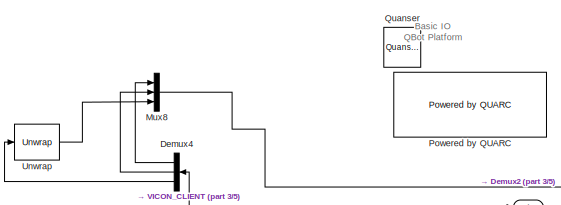
[diagram: root canvas - part 1/5, top right region]
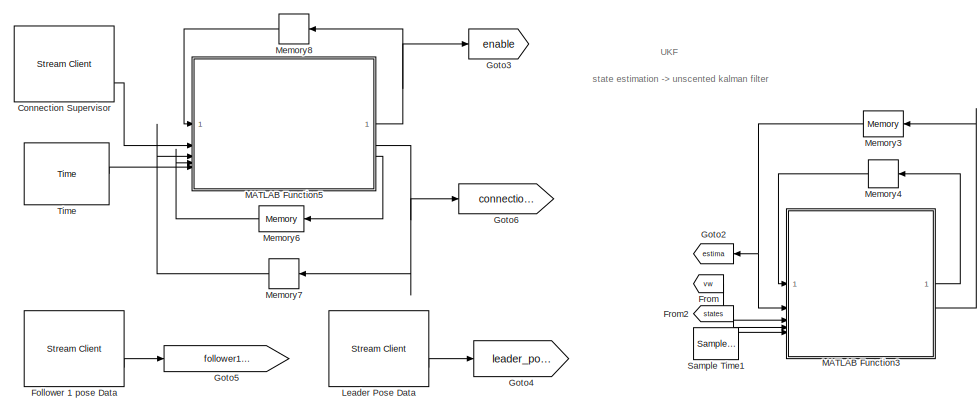
[diagram: root canvas - part 2/5, top left region]
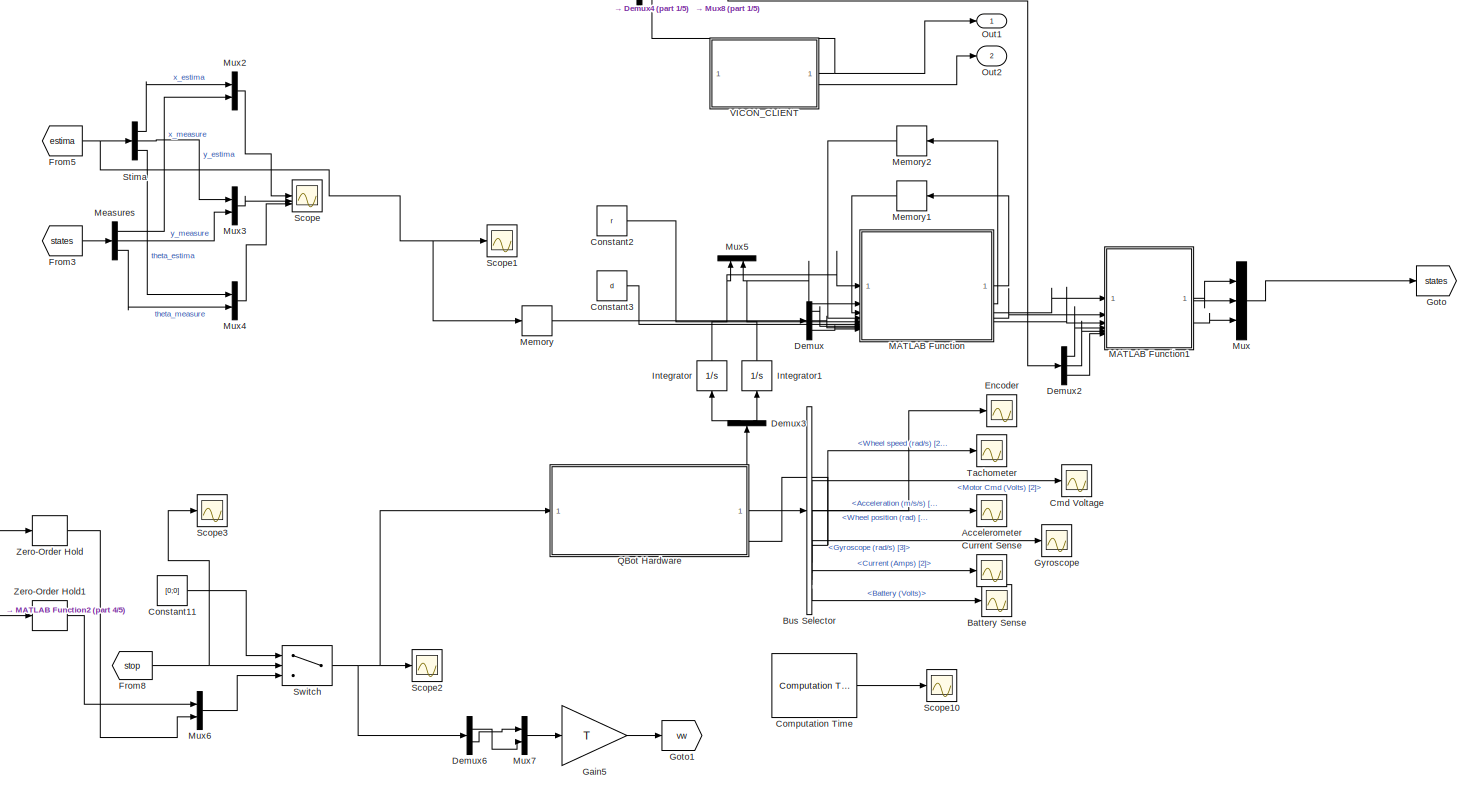
[diagram: root canvas - part 3/5, middle right region]
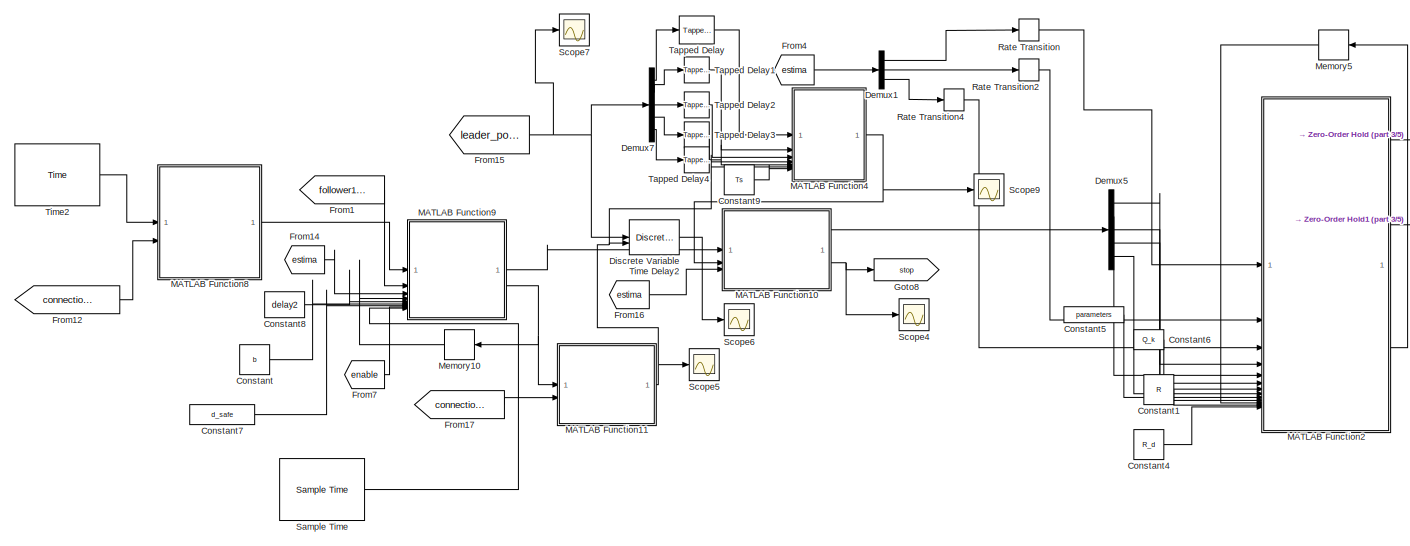
[diagram: root canvas - part 4/5, bottom left region]
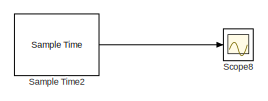
[diagram: root canvas - part 5/5, bottom right region]
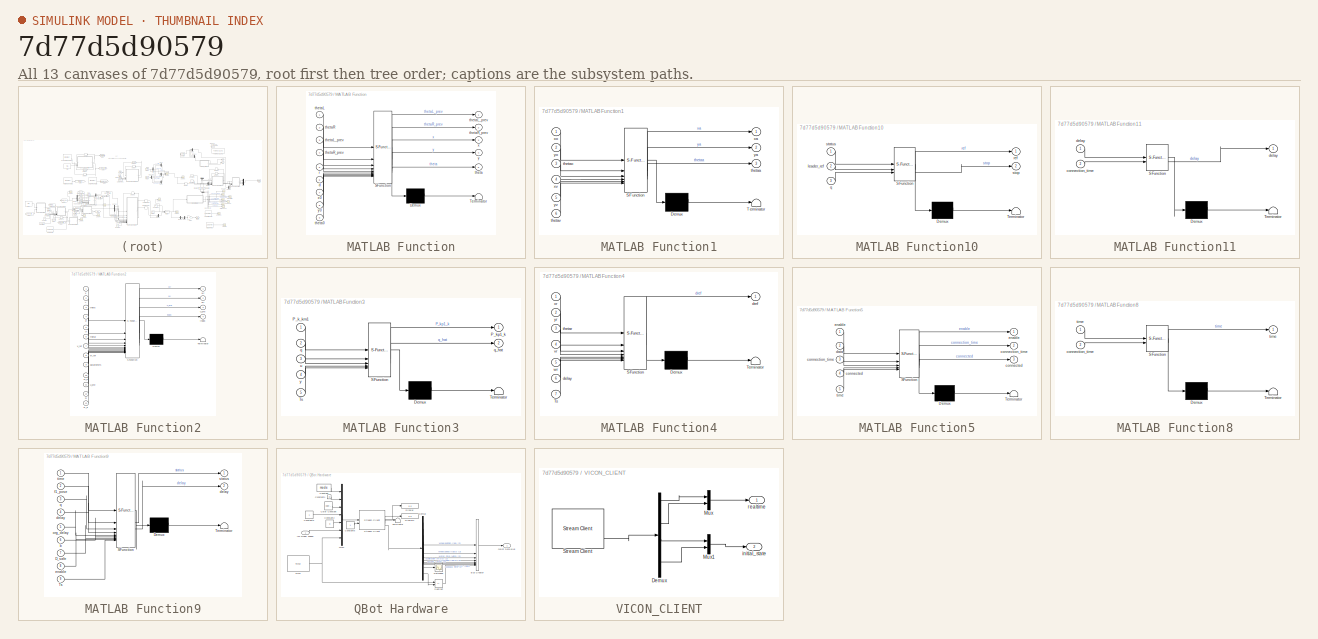
[diagram: thumbnail index - all 13 canvases of the model, root first then tree order]
MODEL slx_7d77d5d90579
KIND model
CONFIG AbsTol = auto
CONFIG EnableMultiTasking = on
CONFIG FixedStep = 1/30
CONFIG MaxStep = auto
CONFIG MinStep = auto
CONFIG RelTol = 1e-3
CONFIG SampleTimeConstraint = Unconstrained
CONFIG SolverName = ode1
CONFIG StartTime = 0.0
CONFIG StopTime = inf
WORKSPACE source: mxarray member
WORKSPACE Sig: Simulink.Signal (value not decoded)
WORKSPACE downCamStepSize: Simulink.Parameter (value not decoded)
WORKSPACE lidarStepSize: Simulink.Parameter (value not decoded)
WORKSPACE mainStepSize: Simulink.Parameter (value not decoded)
WORKSPACE mode: Simulink.Parameter (value not decoded)
WORKSPACE realSenseStepSize: Simulink.Parameter (value not decoded)
BLOCK [Scope] Accelerometer
  Floating = off
  NameLocation = right
  NumInputPorts = 1
  ScopeSpecificationString = Simulink.scopes.TimeScopeBlockCfg('CurrentConfiguration', extmgr.ConfigurationSet(extmgr.Configuration('Core','General UI',true),extmgr.Configuration('Core','Source UI',true),extmgr.Configuration('Sources','WiredSimulink',true,'DataLoggingVariableName','ScopeData5'),extmgr.Configuration('Visuals','Time Domain',true,'SerializedDisplays',{struct('MinYLimReal','-1.32758','MaxYLimReal','11.23','YLabel...<+1468ch>
BLOCK [Scope] Battery Sense
  Floating = off
  NameLocation = right
  NumInputPorts = 1
  ScopeSpecificationString = Simulink.scopes.TimeScopeBlockCfg('CurrentConfiguration', extmgr.ConfigurationSet(extmgr.Configuration('Core','General UI',true),extmgr.Configuration('Core','Source UI',true),extmgr.Configuration('Sources','WiredSimulink',true,'DataLoggingVariableName','ScopeData8'),extmgr.Configuration('Visuals','Time Domain',true,'SerializedDisplays',{struct('MinYLimReal','12.81161','MaxYLimReal','12.96349','YLa...<+1408ch>
BLOCK [BusSelector] Bus Selector
  OutputSignals = Wheel position (rad) [2],Wheel speed (rad/s) [2],Motor Cmd (Volts) [2],Acceleration (m/s/s) [3],Gyroscope (rad/s) [3],Current (Amps) [2],Battery (Volts)
BLOCK [Scope] Cmd Voltage
  Floating = off
  NameLocation = right
  NumInputPorts = 1
  ScopeSpecificationString = Simulink.scopes.TimeScopeBlockCfg('CurrentConfiguration', extmgr.ConfigurationSet(extmgr.Configuration('Core','General UI',true),extmgr.Configuration('Core','Source UI',true),extmgr.Configuration('Sources','WiredSimulink',true,'DataLoggingVariableName','ScopeData4'),extmgr.Configuration('Visuals','Time Domain',true,'SerializedDisplays',{struct('MinYLimReal','-1.00000','MaxYLimReal','1.00000','YLab...<+1441ch>
BLOCK [Reference] Computation Time  REF=quarc_library/Sources/Time/Computation Time
  SourceBlock = quarc_library/Sources/Time/Computation Time
  SourceProductName = QUARC Targets
  SourceType = Computation Time
BLOCK [Reference] Connection Supervisor  REF=quarc_library/Communications/Basic/Stream Client
  AttributesFormatString = "tcpip://192.168.0.5:18014"
  SourceBlock = quarc_library/Communications/Basic/Stream Client
  SourceProductName = QUARC Targets
  SourceType = Stream Client
BLOCK [Constant] Constant
  Value = b
BLOCK [Constant] Constant1
  Value = R
BLOCK [Constant] Constant11
  Value = [0;0]
  VectorParams1D = off
BLOCK [Constant] Constant2
  Value = r
BLOCK [Constant] Constant3
  Value = d
BLOCK [Constant] Constant4
  Value = R_d
BLOCK [Constant] Constant5
  NameLocation = top
  Value = parameters
BLOCK [Constant] Constant6
  NameLocation = top
  Value = Q_k
BLOCK [Constant] Constant7
  Value = d_safe
BLOCK [Constant] Constant8
  Value = delay2
BLOCK [Constant] Constant9
  Value = Ts
BLOCK [Scope] Current Sense
  Floating = off
  NameLocation = right
  NumInputPorts = 1
  ScopeSpecificationString = Simulink.scopes.TimeScopeBlockCfg('CurrentConfiguration', extmgr.ConfigurationSet(extmgr.Configuration('Core','General UI',true),extmgr.Configuration('Core','Source UI',true),extmgr.Configuration('Sources','WiredSimulink',true,'DataLoggingVariableName','ScopeData7'),extmgr.Configuration('Visuals','Time Domain',true,'SerializedDisplays',{struct('MinYLimReal','-0.05029','MaxYLimReal','0.45265','YLab...<+1434ch>
BLOCK [Demux] Demux
  Outputs = 3
BLOCK [Demux] Demux1
  Outputs = 3
BLOCK [Demux] Demux2
  Outputs = 3
BLOCK [Demux] Demux3
  NameLocation = right
  Outputs = 2
BLOCK [Demux] Demux4
  NameLocation = top
  Outputs = 3
BLOCK [Demux] Demux5
  Outputs = 5
BLOCK [Demux] Demux6
  Outputs = 2
BLOCK [Demux] Demux7
  Outputs = 5
BLOCK [Reference] Discrete Variable Time Delay2  REF=spsDiscreteVariableTimeDelayLib/Discrete Variable
Time Delay
  LibrarySourceBlock = sps_lib/Control/Discrete Variable\nTime Delay
  SourceBlock = spsDiscreteVariableTimeDelayLib/Discrete Variable\nTime Delay
  SourceType = Discrete Variable Time Delay
BLOCK [Scope] Encoder
  Floating = off
  NameLocation = right
  NumInputPorts = 1
  ScopeSpecificationString = Simulink.scopes.TimeScopeBlockCfg('CurrentConfiguration', extmgr.ConfigurationSet(extmgr.Configuration('Core','General UI',true),extmgr.Configuration('Core','Source UI',true),extmgr.Configuration('Sources','WiredSimulink',true,'DataLoggingVariableName','ScopeData2'),extmgr.Configuration('Visuals','Time Domain',true,'SerializedDisplays',{struct('MinYLimReal','0.28099','MaxYLimReal','183.6586','YLab...<+1410ch>
BLOCK [Reference] Follower 1 pose Data  REF=quarc_library/Communications/Basic/Stream Client
  AttributesFormatString = "tcpip://192.168.0.130:18012"
  SourceBlock = quarc_library/Communications/Basic/Stream Client
  SourceProductName = QUARC Targets
  SourceType = Stream Client
BLOCK [From] From
  GotoTag = vw
BLOCK [From] From1
  GotoTag = follower1_pose
BLOCK [From] From12
  GotoTag = connection_time
BLOCK [From] From14
  GotoTag = estima
BLOCK [From] From15
  GotoTag = leader_pose
BLOCK [From] From16
  GotoTag = estima
BLOCK [From] From17
  GotoTag = connection_time
BLOCK [From] From2
  GotoTag = states
BLOCK [From] From3
  GotoTag = states
BLOCK [From] From4
  GotoTag = estima
  NameLocation = top
BLOCK [From] From5
  GotoTag = estima
  NameLocation = top
BLOCK [From] From7
  GotoTag = enable
BLOCK [From] From8
  GotoTag = stop
BLOCK [Gain] Gain5
  Gain = T
  Multiplication = Matrix(K*u)
BLOCK [Goto] Goto
  GotoTag = states
BLOCK [Goto] Goto1
  GotoTag = vw
BLOCK [Goto] Goto2
  GotoTag = estima
  NameLocation = top
BLOCK [Goto] Goto3
  GotoTag = enable
BLOCK [Goto] Goto4
  GotoTag = leader_pose
BLOCK [Goto] Goto5
  GotoTag = follower1_pose
BLOCK [Goto] Goto6
  GotoTag = connection_time
BLOCK [Goto] Goto8
  GotoTag = stop
BLOCK [Scope] Gyroscope
  Floating = off
  NameLocation = right
  NumInputPorts = 1
  ScopeSpecificationString = Simulink.scopes.TimeScopeBlockCfg('CurrentConfiguration', extmgr.ConfigurationSet(extmgr.Configuration('Core','General UI',true),extmgr.Configuration('Core','Source UI',true),extmgr.Configuration('Sources','WiredSimulink',true,'DataLoggingVariableName','ScopeData6'),extmgr.Configuration('Visuals','Time Domain',true,'SerializedDisplays',{struct('MinYLimReal','-0.40322','MaxYLimReal','1.99912','YLab...<+1468ch>
BLOCK [Integrator] Integrator
  NameLocation = right
BLOCK [Integrator] Integrator1
  NameLocation = right
BLOCK [Reference] Leader Pose Data  REF=quarc_library/Communications/Basic/Stream Client
  AttributesFormatString = "tcpip://192.168.0.230:18011"
  SourceBlock = quarc_library/Communications/Basic/Stream Client
  SourceProductName = QUARC Targets
  SourceType = Stream Client
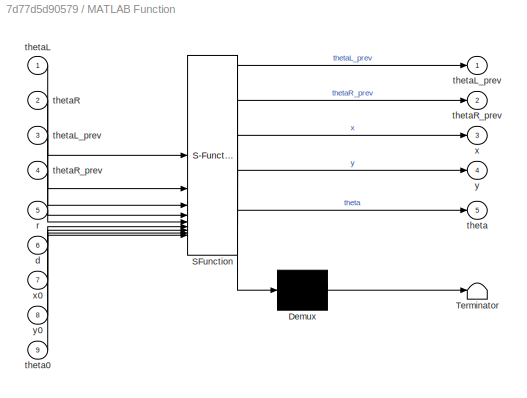
BLOCK [SubSystem] MATLAB Function
  ErrorFcn = Stateflow.Translate.translate
  PermitHierarchicalResolution = ExplicitOnly
  SFBlockType = MATLAB Function
  TreatAsAtomicUnit = on
BLOCK [Demux] MATLAB Function/ Demux 
  Outputs = 1
BLOCK [S-Function] MATLAB Function/ SFunction 
  EnableBusSupport = on
  FunctionName = sf_sfun
  PortCounts = [9 6]
  SFcnIsStateOwnerBlock = off
  SFunctionDeploymentMode = off
  Tag = Stateflow S-Function 2
BLOCK [Terminator] MATLAB Function/ Terminator 
BLOCK [Inport] MATLAB Function/d
  Port = 6
BLOCK [Inport] MATLAB Function/r
  Port = 5
BLOCK [Outport] MATLAB Function/theta
  Port = 5
BLOCK [Inport] MATLAB Function/theta0
  Port = 9
BLOCK [Inport] MATLAB Function/thetaL
BLOCK [Outport] MATLAB Function/thetaL_prev
BLOCK [Inport] MATLAB Function/thetaL_prev 
  Port = 3
BLOCK [Inport] MATLAB Function/thetaR
  Port = 2
BLOCK [Outport] MATLAB Function/thetaR_prev
  Port = 2
BLOCK [Inport] MATLAB Function/thetaR_prev 
  Port = 4
BLOCK [Outport] MATLAB Function/x
  Port = 3
BLOCK [Inport] MATLAB Function/x0
  Port = 7
BLOCK [Outport] MATLAB Function/y
  Port = 4
BLOCK [Inport] MATLAB Function/y0
  Port = 8
BLOCK [SubSystem] MATLAB Function1
  ErrorFcn = Stateflow.Translate.translate
  PermitHierarchicalResolution = ExplicitOnly
  SFBlockType = MATLAB Function
  TreatAsAtomicUnit = on
BLOCK [Demux] MATLAB Function1/ Demux 
  Outputs = 1
BLOCK [S-Function] MATLAB Function1/ SFunction 
  EnableBusSupport = on
  FunctionName = sf_sfun
  PortCounts = [6 4]
  SFcnIsStateOwnerBlock = off
  SFunctionDeploymentMode = off
  Tag = Stateflow S-Function 1
BLOCK [Terminator] MATLAB Function1/ Terminator 
BLOCK [Outport] MATLAB Function1/thetaa
  Port = 3
BLOCK [Inport] MATLAB Function1/thetao
  Port = 3
BLOCK [Inport] MATLAB Function1/thetav
  Port = 6
BLOCK [Outport] MATLAB Function1/xa
BLOCK [Inport] MATLAB Function1/xo
BLOCK [Inport] MATLAB Function1/xv
  Port = 4
BLOCK [Outport] MATLAB Function1/ya
  Port = 2
BLOCK [Inport] MATLAB Function1/yo
  Port = 2
BLOCK [Inport] MATLAB Function1/yv
  Port = 5
BLOCK [SubSystem] MATLAB Function10
  ErrorFcn = Stateflow.Translate.translate
  LibrarySourceBlock = simulink/User-Defined\nFunctions/MATLAB Function
  PermitHierarchicalResolution = ExplicitOnly
  SFBlockType = MATLAB Function
  TreatAsAtomicUnit = on
BLOCK [Demux] MATLAB Function10/ Demux 
  Outputs = 1
BLOCK [S-Function] MATLAB Function10/ SFunction 
  EnableBusSupport = on
  FunctionName = sf_sfun
  PortCounts = [3 3]
  SFcnIsStateOwnerBlock = off
  SFunctionDeploymentMode = off
  Tag = Stateflow S-Function 10
BLOCK [Terminator] MATLAB Function10/ Terminator 
BLOCK [Inport] MATLAB Function10/leader_ref
  Port = 2
BLOCK [Inport] MATLAB Function10/q
  Port = 3
BLOCK [Outport] MATLAB Function10/ref
BLOCK [Inport] MATLAB Function10/status
BLOCK [Outport] MATLAB Function10/stop
  Port = 2
BLOCK [SubSystem] MATLAB Function11
  ErrorFcn = Stateflow.Translate.translate
  LibrarySourceBlock = simulink/User-Defined\nFunctions/MATLAB Function
  PermitHierarchicalResolution = ExplicitOnly
  SFBlockType = MATLAB Function
  TreatAsAtomicUnit = on
BLOCK [Demux] MATLAB Function11/ Demux 
  Outputs = 1
BLOCK [S-Function] MATLAB Function11/ SFunction 
  EnableBusSupport = on
  FunctionName = sf_sfun
  PortCounts = [2 2]
  SFcnIsStateOwnerBlock = off
  SFunctionDeploymentMode = off
  Tag = Stateflow S-Function 12
BLOCK [Terminator] MATLAB Function11/ Terminator 
BLOCK [Inport] MATLAB Function11/connection_time
  Port = 2
BLOCK [Outport] MATLAB Function11/delay
BLOCK [Inport] MATLAB Function11/delay 
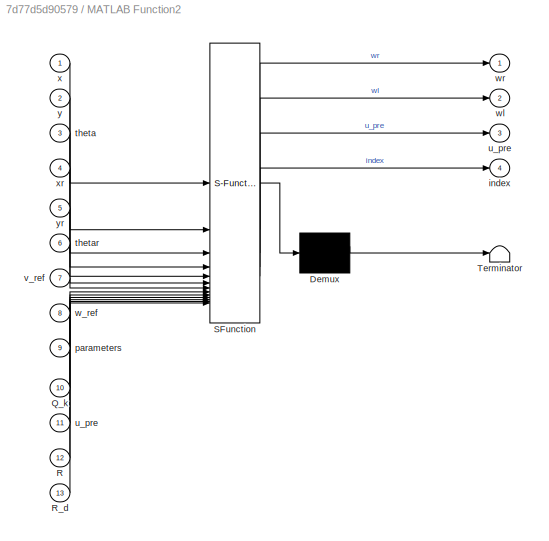
BLOCK [SubSystem] MATLAB Function2
  ErrorFcn = Stateflow.Translate.translate
  NameLocation = right
  PermitHierarchicalResolution = ExplicitOnly
  SFBlockType = MATLAB Function
  TreatAsAtomicUnit = on
BLOCK [Demux] MATLAB Function2/ Demux 
  Outputs = 1
BLOCK [S-Function] MATLAB Function2/ SFunction 
  EnableBusSupport = on
  FunctionName = sf_sfun
  PortCounts = [13 5]
  SFcnIsStateOwnerBlock = off
  SFunctionDeploymentMode = off
  Tag = Stateflow S-Function 11
BLOCK [Terminator] MATLAB Function2/ Terminator 
BLOCK [Inport] MATLAB Function2/Q_k
  Port = 10
BLOCK [Inport] MATLAB Function2/R
  Port = 12
BLOCK [Inport] MATLAB Function2/R_d
  Port = 13
BLOCK [Outport] MATLAB Function2/index
  Port = 4
BLOCK [Inport] MATLAB Function2/parameters
  Port = 9
BLOCK [Inport] MATLAB Function2/theta
  Port = 3
BLOCK [Inport] MATLAB Function2/thetar
  Port = 6
BLOCK [Outport] MATLAB Function2/u_pre
  Port = 3
BLOCK [Inport] MATLAB Function2/u_pre 
  Port = 11
BLOCK [Inport] MATLAB Function2/v_ref
  Port = 7
BLOCK [Inport] MATLAB Function2/w_ref
  Port = 8
BLOCK [Outport] MATLAB Function2/wl
  Port = 2
BLOCK [Outport] MATLAB Function2/wr
  VectorParamsAs1DForOutWhenUnconnected = off
BLOCK [Inport] MATLAB Function2/x
BLOCK [Inport] MATLAB Function2/xr
  Port = 4
BLOCK [Inport] MATLAB Function2/y
  Port = 2
BLOCK [Inport] MATLAB Function2/yr
  Port = 5
BLOCK [SubSystem] MATLAB Function3
  ErrorFcn = Stateflow.Translate.translate
  LibrarySourceBlock = simulink/User-Defined\nFunctions/MATLAB Function
  PermitHierarchicalResolution = ExplicitOnly
  SFBlockType = MATLAB Function
  TreatAsAtomicUnit = on
BLOCK [Demux] MATLAB Function3/ Demux 
  Outputs = 1
BLOCK [S-Function] MATLAB Function3/ SFunction 
  EnableBusSupport = on
  FunctionName = sf_sfun
  PortCounts = [5 3]
  SFcnIsStateOwnerBlock = off
  SFunctionDeploymentMode = off
  Tag = Stateflow S-Function 6
BLOCK [Terminator] MATLAB Function3/ Terminator 
BLOCK [Inport] MATLAB Function3/P_k_km1
BLOCK [Outport] MATLAB Function3/P_kp1_k
BLOCK [Inport] MATLAB Function3/Ts
  Port = 5
BLOCK [Inport] MATLAB Function3/q
  Port = 2
BLOCK [Outport] MATLAB Function3/q_hat
  Port = 2
BLOCK [Inport] MATLAB Function3/u
  Port = 3
BLOCK [Inport] MATLAB Function3/y
  Port = 4
BLOCK [SubSystem] MATLAB Function4
  ErrorFcn = Stateflow.Translate.translate
  LibrarySourceBlock = simulink/User-Defined\nFunctions/MATLAB Function
  PermitHierarchicalResolution = ExplicitOnly
  SFBlockType = MATLAB Function
  TreatAsAtomicUnit = on
BLOCK [Demux] MATLAB Function4/ Demux 
  Outputs = 1
BLOCK [S-Function] MATLAB Function4/ SFunction 
  EnableBusSupport = on
  FunctionName = sf_sfun
  PortCounts = [7 2]
  SFcnIsStateOwnerBlock = off
  SFunctionDeploymentMode = off
  Tag = Stateflow S-Function 3
BLOCK [Terminator] MATLAB Function4/ Terminator 
BLOCK [Inport] MATLAB Function4/Ts
  Port = 7
BLOCK [Inport] MATLAB Function4/delay
  Port = 6
BLOCK [Outport] MATLAB Function4/dref
BLOCK [Inport] MATLAB Function4/thetar
  Port = 3
BLOCK [Inport] MATLAB Function4/vr
  Port = 4
BLOCK [Inport] MATLAB Function4/wr
  Port = 5
BLOCK [Inport] MATLAB Function4/xr
BLOCK [Inport] MATLAB Function4/yr
  Port = 2
BLOCK [SubSystem] MATLAB Function5
  ErrorFcn = Stateflow.Translate.translate
  LibrarySourceBlock = simulink/User-Defined\nFunctions/MATLAB Function
  PermitHierarchicalResolution = ExplicitOnly
  SFBlockType = MATLAB Function
  TreatAsAtomicUnit = on
BLOCK [Demux] MATLAB Function5/ Demux 
  Outputs = 1
BLOCK [S-Function] MATLAB Function5/ SFunction 
  EnableBusSupport = on
  FunctionName = sf_sfun
  PortCounts = [5 4]
  SFcnIsStateOwnerBlock = off
  SFunctionDeploymentMode = off
  Tag = Stateflow S-Function 4
BLOCK [Terminator] MATLAB Function5/ Terminator 
BLOCK [Outport] MATLAB Function5/connected
  Port = 3
BLOCK [Inport] MATLAB Function5/connected 
  Port = 4
BLOCK [Outport] MATLAB Function5/connection_time
  Port = 2
BLOCK [Inport] MATLAB Function5/connection_time 
  Port = 3
BLOCK [Inport] MATLAB Function5/data
  Port = 2
BLOCK [Outport] MATLAB Function5/enable
BLOCK [Inport] MATLAB Function5/enable 
BLOCK [Inport] MATLAB Function5/time
  Port = 5
BLOCK [SubSystem] MATLAB Function8
  ErrorFcn = Stateflow.Translate.translate
  LibrarySourceBlock = simulink/User-Defined\nFunctions/MATLAB Function
  PermitHierarchicalResolution = ExplicitOnly
  SFBlockType = MATLAB Function
  TreatAsAtomicUnit = on
BLOCK [Demux] MATLAB Function8/ Demux 
  Outputs = 1
BLOCK [S-Function] MATLAB Function8/ SFunction 
  EnableBusSupport = on
  FunctionName = sf_sfun
  PortCounts = [2 2]
  SFcnIsStateOwnerBlock = off
  SFunctionDeploymentMode = off
  Tag = Stateflow S-Function 8
BLOCK [Terminator] MATLAB Function8/ Terminator 
BLOCK [Inport] MATLAB Function8/connection_time
  Port = 2
BLOCK [Outport] MATLAB Function8/time
BLOCK [Inport] MATLAB Function8/time 
BLOCK [SubSystem] MATLAB Function9
  ErrorFcn = Stateflow.Translate.translate
  LibrarySourceBlock = simulink/User-Defined\nFunctions/MATLAB Function
  PermitHierarchicalResolution = ExplicitOnly
  SFBlockType = MATLAB Function
  TreatAsAtomicUnit = on
BLOCK [Demux] MATLAB Function9/ Demux 
  Outputs = 1
BLOCK [S-Function] MATLAB Function9/ SFunction 
  EnableBusSupport = on
  FunctionName = sf_sfun
  PortCounts = [9 3]
  SFcnIsStateOwnerBlock = off
  SFunctionDeploymentMode = off
  Tag = Stateflow S-Function 9
BLOCK [Terminator] MATLAB Function9/ Terminator 
BLOCK [Inport] MATLAB Function9/D_safe
  Port = 7
BLOCK [Inport] MATLAB Function9/Ts
  Port = 9
BLOCK [Inport] MATLAB Function9/b
  Port = 6
BLOCK [Outport] MATLAB Function9/delay
  Port = 2
BLOCK [Inport] MATLAB Function9/delay 
  Port = 4
BLOCK [Inport] MATLAB Function9/enable
  Port = 8
BLOCK [Inport] MATLAB Function9/f1_pose
  Port = 2
BLOCK [Inport] MATLAB Function9/org_delay
  Port = 5
BLOCK [Inport] MATLAB Function9/q
  Port = 3
BLOCK [Outport] MATLAB Function9/status
BLOCK [Inport] MATLAB Function9/time
BLOCK [Demux] Measures
  Outputs = 3
BLOCK [Memory] Memory
  InitialCondition = X0
BLOCK [Memory] Memory1
  NameLocation = top
BLOCK [Memory] Memory10
  InitialCondition = delay2
  NameLocation = top
BLOCK [Memory] Memory2
  NameLocation = top
BLOCK [Memory] Memory3
  InheritSampleTime = on
  InitialCondition = X0
  NameLocation = top
BLOCK [Memory] Memory4
  InheritSampleTime = on
  InitialCondition = 1e-6*eye(3)
  NameLocation = top
BLOCK [Memory] Memory5
  InitialCondition = u_pre
  NameLocation = top
BLOCK [Memory] Memory6
  NameLocation = top
BLOCK [Memory] Memory7
  NameLocation = top
BLOCK [Memory] Memory8
  NameLocation = top
BLOCK [Mux] Mux
  DisplayOption = bar
  Inputs = 3
BLOCK [Mux] Mux2
  DisplayOption = bar
  Inputs = 2
BLOCK [Mux] Mux3
  DisplayOption = bar
  Inputs = 2
BLOCK [Mux] Mux4
  DisplayOption = bar
  Inputs = 2
BLOCK [Mux] Mux5
  DisplayOption = bar
  Inputs = 2
  NameLocation = right
BLOCK [Mux] Mux6
  DisplayOption = bar
  Inputs = 2
BLOCK [Mux] Mux7
  DisplayOption = bar
  Inputs = 2
BLOCK [Mux] Mux8
  DisplayOption = bar
  Inputs = 3
BLOCK [Outport] Out1
BLOCK [Outport] Out2
  Port = 2
BLOCK [Reference] Powered by QUARC  REF=quarc_library/Logos/Powered by QUARC
  SourceBlock = quarc_library/Logos/Powered by QUARC
  SourceProductName = QUARC Targets
  SourceType = Powered by QUARC
BLOCK [SubSystem] QBot Hardware
BLOCK [BusCreator] QBot Hardware/Bus Creator
  DisplayOption = bar
  InheritFromInputs = on
  Inputs = 8
BLOCK [Reference] QBot Hardware/Color Constant  REF=quarc_library/Sources/Signals/Color Constant
  SourceBlock = quarc_library/Sources/Signals/Color Constant
  SourceProductName = QUARC Targets
  SourceType = Color Constant
BLOCK [Constant] QBot Hardware/Constant
  Value = mode
BLOCK [Constant] QBot Hardware/Constant1
  Value = 0
BLOCK [Constant] QBot Hardware/Constant2
  Value = 0
BLOCK [Constant] QBot Hardware/Constant3
BLOCK [Constant] QBot Hardware/Constant6
BLOCK [Demux] QBot Hardware/Demux
  Outputs = [2 2 2 3 3 2 1 1 1]
BLOCK [Display] QBot Hardware/Display
  Decimation = 1
BLOCK [Display] QBot Hardware/Display1
  Decimation = 1
BLOCK [Mux] QBot Hardware/Mux1
  DisplayOption = bar
  Inputs = 7
BLOCK [Outport] QBot Hardware/QBot Data Bus
BLOCK [Reference] QBot Hardware/Stream Client  REF=quarc_library/Communications/Basic/Stream Client
  AttributesFormatString = "tcpip://localhost:18888"
  SourceBlock = quarc_library/Communications/Basic/Stream Client
  SourceProductName = QUARC Targets
  SourceType = Stream Client
BLOCK [Sum] QBot Hardware/Subtract
  IconShape = rectangular
  Inputs = +-
BLOCK [Terminator] QBot Hardware/Terminator
BLOCK [Reference] QBot Hardware/Time  REF=quarc_library/Sources/Time/Time
  SourceBlock = quarc_library/Sources/Time/Time
  SourceProductName = QUARC Targets
  SourceType = Time
BLOCK [Inport] QBot Hardware/rsc wheel speed
BLOCK [Scope] QBot Hardware/watchdog
  Floating = off
  NumInputPorts = 1
  ScopeSpecificationString = Simulink.scopes.TimeScopeBlockCfg('CurrentConfiguration', extmgr.ConfigurationSet(extmgr.Configuration('Core','General UI',true),extmgr.Configuration('Core','Source UI',true),extmgr.Configuration('Sources','WiredSimulink',true,'DataLoggingVariableName','ScopeData1'),extmgr.Configuration('Visuals','Time Domain',true),extmgr.Configuration('Tools','Plot Navigation',true),extmgr.Configuration('Tools',...<+40ch>
BLOCK [Reference] Quanser  REF=quarc_library/Logos/Quanser
  SourceBlock = quarc_library/Logos/Quanser
  SourceProductName = QUARC Targets
  SourceType = Powered by Quanser
BLOCK [RateTransition] Rate Transition
  OutPortSampleTime = Ts
BLOCK [RateTransition] Rate Transition2
  OutPortSampleTime = Ts
BLOCK [RateTransition] Rate Transition4
  OutPortSampleTime = Ts
BLOCK [Reference] Sample Time  REF=quarc_library/Sources/Time/Sample Time
  Priority = -99
  SourceBlock = quarc_library/Sources/Time/Sample Time
  SourceProductName = QUARC Targets
  SourceType = Sample Time
BLOCK [Reference] Sample Time1  REF=quarc_library/Sources/Time/Sample Time
  Priority = -99
  SourceBlock = quarc_library/Sources/Time/Sample Time
  SourceProductName = QUARC Targets
  SourceType = Sample Time
BLOCK [Reference] Sample Time2  REF=quarc_library/Sources/Time/Sample Time
  Priority = -99
  SourceBlock = quarc_library/Sources/Time/Sample Time
  SourceProductName = QUARC Targets
  SourceType = Sample Time
BLOCK [Scope] Scope
  Floating = off
  NumInputPorts = 3
  ScopeSpecificationString = Simulink.scopes.TimeScopeBlockCfg('CurrentConfiguration', extmgr.ConfigurationSet(extmgr.Configuration('Core','General UI',true,'FigureColor',[1 1 1]),extmgr.Configuration('Core','Source UI',true),extmgr.Configuration('Sources','WiredSimulink',true,'DataLoggingVariableName','ScopeData1'),extmgr.Configuration('Visuals','Time Domain',true,'SerializedDisplays',{struct('MinYLimReal','-1.86646','MaxYLi...<+3393ch>
BLOCK [Scope] Scope1
  Floating = off
  NumInputPorts = 1
  ScopeSpecificationString = Simulink.scopes.TimeScopeBlockCfg('CurrentConfiguration', extmgr.ConfigurationSet(extmgr.Configuration('Core','General UI',true),extmgr.Configuration('Core','Source UI',true),extmgr.Configuration('Sources','WiredSimulink',true,'DataLoggingVariableName','ScopeData1'),extmgr.Configuration('Visuals','Time Domain',true),extmgr.Configuration('Tools','Plot Navigation',true),extmgr.Configuration('Tools',...<+40ch>
BLOCK [Scope] Scope10
  Floating = off
  NumInputPorts = 1
  ScopeSpecificationString = Simulink.scopes.TimeScopeBlockCfg('CurrentConfiguration', extmgr.ConfigurationSet(extmgr.Configuration('Core','General UI',true),extmgr.Configuration('Core','Source UI',true),extmgr.Configuration('Sources','WiredSimulink',true,'DataLoggingVariableName','ScopeData1'),extmgr.Configuration('Visuals','Time Domain',true,'SerializedDisplays',{struct('MinYLimReal','0.000026','MaxYLimReal','0.00008','YLab...<+1456ch>
BLOCK [Scope] Scope2
  Floating = off
  NumInputPorts = 1
  ScopeSpecificationString = Simulink.scopes.TimeScopeBlockCfg('CurrentConfiguration', extmgr.ConfigurationSet(extmgr.Configuration('Core','General UI',true),extmgr.Configuration('Core','Source UI',true),extmgr.Configuration('Sources','WiredSimulink',true,'DataLoggingVariableName','ScopeData1'),extmgr.Configuration('Visuals','Time Domain',true,'SerializedDisplays',{struct('MinYLimReal','-1.25','MaxYLimReal','11.25','YLabelRea...<+1389ch>
BLOCK [Scope] Scope3
  Floating = off
  NumInputPorts = 1
  ScopeSpecificationString = Simulink.scopes.TimeScopeBlockCfg('CurrentConfiguration', extmgr.ConfigurationSet(extmgr.Configuration('Core','General UI',true),extmgr.Configuration('Core','Source UI',true),extmgr.Configuration('Sources','WiredSimulink',true,'DataLoggingVariableName','ScopeData2'),extmgr.Configuration('Visuals','Time Domain',true,'SerializedDisplays',{struct('MinYLimReal','-0.125','MaxYLimReal','1.125','YLabelRe...<+1378ch>
BLOCK [Scope] Scope4
  Floating = off
  NumInputPorts = 1
  ScopeSpecificationString = Simulink.scopes.TimeScopeBlockCfg('CurrentConfiguration', extmgr.ConfigurationSet(extmgr.Configuration('Core','General UI',true),extmgr.Configuration('Core','Source UI',true),extmgr.Configuration('Sources','WiredSimulink',true,'DataLoggingVariableName','ScopeData1'),extmgr.Configuration('Visuals','Time Domain',true,'SerializedDisplays',{struct('MinYLimReal','-0.125','MaxYLimReal','1.125','YLabelRe...<+1422ch>
BLOCK [Scope] Scope5
  Floating = off
  NumInputPorts = 1
  ScopeSpecificationString = Simulink.scopes.TimeScopeBlockCfg('CurrentConfiguration', extmgr.ConfigurationSet(extmgr.Configuration('Core','General UI',true),extmgr.Configuration('Core','Source UI',true),extmgr.Configuration('Sources','WiredSimulink',true,'DataLoggingVariableName','ScopeData1'),extmgr.Configuration('Visuals','Time Domain',true,'SerializedDisplays',{struct('MinYLimReal','8.5438','MaxYLimReal','12.93878','YLabe...<+1447ch>
BLOCK [Scope] Scope6
  Floating = off
  NumInputPorts = 1
  ScopeSpecificationString = Simulink.scopes.TimeScopeBlockCfg('CurrentConfiguration', extmgr.ConfigurationSet(extmgr.Configuration('Core','General UI',true),extmgr.Configuration('Core','Source UI',true),extmgr.Configuration('Sources','WiredSimulink',true,'DataLoggingVariableName','ScopeData2'),extmgr.Configuration('Visuals','Time Domain',true,'SerializedDisplays',{struct('MinYLimReal','-2.41035','MaxYLimReal','6.69285','YLab...<+1598ch>
BLOCK [Scope] Scope7
  Floating = off
  NumInputPorts = 1
  ScopeSpecificationString = Simulink.scopes.TimeScopeBlockCfg('CurrentConfiguration', extmgr.ConfigurationSet(extmgr.Configuration('Core','General UI',true),extmgr.Configuration('Core','Source UI',true),extmgr.Configuration('Sources','WiredSimulink',true,'DataLoggingVariableName','ScopeData1'),extmgr.Configuration('Visuals','Time Domain',true,'SerializedDisplays',{struct('MinYLimReal','-0.52993','MaxYLimReal','1.70949','YLab...<+1525ch>
BLOCK [Scope] Scope8
  Floating = off
  NumInputPorts = 1
  ScopeSpecificationString = Simulink.scopes.TimeScopeBlockCfg('CurrentConfiguration', extmgr.ConfigurationSet(extmgr.Configuration('Core','General UI',true),extmgr.Configuration('Core','Source UI',true),extmgr.Configuration('Sources','WiredSimulink',true,'DataLoggingVariableName','ScopeData2'),extmgr.Configuration('Visuals','Time Domain',true,'SerializedDisplays',{struct('MinYLimReal','0.01002','MaxYLimReal','0.01742','YLabe...<+1442ch>
BLOCK [Scope] Scope9
  Floating = off
  NumInputPorts = 1
  ScopeSpecificationString = Simulink.scopes.TimeScopeBlockCfg('CurrentConfiguration', extmgr.ConfigurationSet(extmgr.Configuration('Core','General UI',true),extmgr.Configuration('Core','Source UI',true),extmgr.Configuration('Sources','WiredSimulink',true,'DataLoggingVariableName','ScopeData1'),extmgr.Configuration('Visuals','Time Domain',true,'SerializedDisplays',{struct('MinYLimReal','-2.42218','MaxYLimReal','6.68948','YLab...<+1534ch>
BLOCK [Demux] Stima
  Outputs = 3
BLOCK [Switch] Switch
  Criteria = u2 ~= 0
  InputSameDT = off
  SaturateOnIntegerOverflow = off
BLOCK [Scope] Tachometer
  Floating = off
  NameLocation = right
  NumInputPorts = 1
  ScopeSpecificationString = Simulink.scopes.TimeScopeBlockCfg('CurrentConfiguration', extmgr.ConfigurationSet(extmgr.Configuration('Core','General UI',true),extmgr.Configuration('Core','Source UI',true),extmgr.Configuration('Sources','WiredSimulink',true,'DataLoggingVariableName','ScopeData3'),extmgr.Configuration('Visuals','Time Domain',true,'SerializedDisplays',{struct('MinYLimReal','-1.00000','MaxYLimReal','13.60362','YLa...<+1497ch>
BLOCK [Reference] Tapped Delay  REF=simulink/Discrete/Tapped Delay
  SourceBlock = simulink/Discrete/Tapped Delay
  SourceType = Tapped Delay Line
BLOCK [Reference] Tapped Delay1  REF=simulink/Discrete/Tapped Delay
  SourceBlock = simulink/Discrete/Tapped Delay
  SourceType = Tapped Delay Line
BLOCK [Reference] Tapped Delay2  REF=simulink/Discrete/Tapped Delay
  SourceBlock = simulink/Discrete/Tapped Delay
  SourceType = Tapped Delay Line
BLOCK [Reference] Tapped Delay3  REF=simulink/Discrete/Tapped Delay
  SourceBlock = simulink/Discrete/Tapped Delay
  SourceType = Tapped Delay Line
BLOCK [Reference] Tapped Delay4  REF=simulink/Discrete/Tapped Delay
  SourceBlock = simulink/Discrete/Tapped Delay
  SourceType = Tapped Delay Line
BLOCK [Reference] Time  REF=quarc_library/Sources/Time/Time
  SourceBlock = quarc_library/Sources/Time/Time
  SourceProductName = QUARC Targets
  SourceType = Time
BLOCK [Reference] Time2  REF=quarc_library/Sources/Time/Time
  SourceBlock = quarc_library/Sources/Time/Time
  SourceProductName = QUARC Targets
  SourceType = Time
BLOCK [Reference] Unwrap  REF=dspsigops/Unwrap
  SourceBlock = dspsigops/Unwrap
  SourceType = Unwrap
  UserDataPersistent = on
BLOCK [SubSystem] VICON_CLIENT
BLOCK [Demux] VICON_CLIENT/Demux
  Outputs = [2 1 2 1 1 2 1 2 1 1]
BLOCK [Mux] VICON_CLIENT/Mux
  DisplayOption = bar
  Inputs = 2
BLOCK [Mux] VICON_CLIENT/Mux1
  DisplayOption = bar
  Inputs = 2
BLOCK [Reference] VICON_CLIENT/Stream Client  REF=quarc_library/Communications/Basic/Stream Client
  AttributesFormatString = "tcpip://192.168.0.5:18101"
  SourceBlock = quarc_library/Communications/Basic/Stream Client
  SourceProductName = QUARC Targets
  SourceType = Stream Client
BLOCK [Outport] VICON_CLIENT/initial_state
  Port = 2
BLOCK [Outport] VICON_CLIENT/realtime
BLOCK [ZeroOrderHold] Zero-Order Hold
  NameLocation = top
  SampleTime = Ts
BLOCK [ZeroOrderHold] Zero-Order Hold1
  NameLocation = top
  SampleTime = Ts
ANNOTATION (root): Basic IO QBot Platform
ANNOTATION (root): UKF
ANNOTATION (root): state estimation -> unscented kalman filter
LINE Bus Selector:1 -> Encoder:1
NET Bus Selector:2 -> Demux3:1, Tachometer:1
LINE Bus Selector:3 -> Cmd Voltage:1
LINE Bus Selector:4 -> Accelerometer:1
LINE Bus Selector:5 -> Gyroscope:1
LINE Bus Selector:6 -> Current Sense:1
LINE Bus Selector:7 -> Battery Sense:1
LINE Computation Time:1 -> Scope10:1
LINE Connection Supervisor:3 -> MATLAB Function5:2
LINE Constant11:1 -> Switch:1
LINE Constant1:1 -> MATLAB Function2:12
LINE Constant2:1 -> MATLAB Function:5
LINE Constant3:1 -> MATLAB Function:6
LINE Constant4:1 -> MATLAB Function2:13
LINE Constant5:1 -> MATLAB Function2:9
LINE Constant6:1 -> MATLAB Function2:10
LINE Constant7:1 -> MATLAB Function9:7
LINE Constant8:1 -> MATLAB Function9:5
LINE Constant9:1 -> MATLAB Function4:7
LINE Constant:1 -> MATLAB Function9:6
LINE Demux1:1 -> Rate Transition:1
LINE Demux1:2 -> Rate Transition2:1
LINE Demux1:3 -> Rate Transition4:1
LINE Demux2:1 -> MATLAB Function1:4
LINE Demux2:2 -> MATLAB Function1:5
LINE Demux2:3 -> MATLAB Function1:6
LINE Demux3:1 -> Integrator:1
LINE Demux3:2 -> Integrator1:1
LINE Demux4:1 -> Mux8:1
LINE Demux4:2 -> Mux8:2
LINE Demux4:3 -> Unwrap:1
LINE Demux5:1 -> MATLAB Function2:4
LINE Demux5:2 -> MATLAB Function2:5
LINE Demux5:3 -> MATLAB Function2:6
LINE Demux5:4 -> MATLAB Function2:7
LINE Demux5:5 -> MATLAB Function2:8
LINE Demux6:1 -> Mux7:2
LINE Demux6:2 -> Mux7:1
LINE Demux7:1 -> Tapped Delay:1
LINE Demux7:2 -> Tapped Delay1:1
LINE Demux7:3 -> Tapped Delay2:1
LINE Demux7:4 -> Tapped Delay3:1
LINE Demux7:5 -> Tapped Delay4:1
LINE Demux:1 -> MATLAB Function:7
LINE Demux:2 -> MATLAB Function:8
LINE Demux:3 -> MATLAB Function:9
LINE Discrete Variable Time Delay2:1 -> Scope6:1
LINE Follower 1 pose Data:3 -> Goto5:1
LINE From12:1 -> MATLAB Function8:2
LINE From14:1 -> MATLAB Function9:3
NET From15:1 -> Demux7:1, Discrete Variable Time Delay2:1, Scope7:1
LINE From16:1 -> MATLAB Function10:3
LINE From17:1 -> MATLAB Function11:2
LINE From1:1 -> MATLAB Function9:2
LINE From2:1 -> MATLAB Function3:4
LINE From3:1 -> Measures:1
LINE From4:1 -> Demux1:1
NET From5:1 -> Memory:1, Scope1:1, Stima:1
LINE From7:1 -> MATLAB Function9:8
NET From8:1 -> Scope3:1, Switch:2
LINE From:1 -> MATLAB Function3:3
LINE Gain5:1 -> Goto1:1
NET Integrator1:1 -> MATLAB Function:2, Mux5:2
NET Integrator:1 -> MATLAB Function:1, Mux5:1
LINE Leader Pose Data:3 -> Goto4:1
LINE MATLAB Function10:1 -> Demux5:1
NET MATLAB Function10:2 -> Goto8:1, Scope4:1
NET MATLAB Function11:1 -> Discrete Variable Time Delay2:2, MATLAB Function4:6, Scope5:1
LINE MATLAB Function1:1 -> Mux:1
LINE MATLAB Function1:2 -> Mux:2
LINE MATLAB Function1:3 -> Mux:3
LINE MATLAB Function2:1 -> Zero-Order Hold:1
LINE MATLAB Function2:2 -> Zero-Order Hold1:1
LINE MATLAB Function2:3 -> Memory5:1
LINE MATLAB Function3:1 -> Memory4:1
LINE MATLAB Function3:2 -> Memory3:1
NET MATLAB Function4:1 -> MATLAB Function10:2, Scope9:1
NET MATLAB Function5:1 -> Goto3:1, Memory8:1
NET MATLAB Function5:2 -> Goto6:1, Memory7:1
LINE MATLAB Function5:3 -> Memory6:1
LINE MATLAB Function8:1 -> MATLAB Function9:1
LINE MATLAB Function9:1 -> MATLAB Function10:1
NET MATLAB Function9:2 -> MATLAB Function11:1, Memory10:1
LINE MATLAB Function:1 -> Memory1:1
LINE MATLAB Function:2 -> Memory2:1
LINE MATLAB Function:3 -> MATLAB Function1:1
LINE MATLAB Function:4 -> MATLAB Function1:2
LINE MATLAB Function:5 -> MATLAB Function1:3
LINE Measures:1 -> Mux2:2
LINE Measures:2 -> Mux3:2
LINE Measures:3 -> Mux4:2
LINE Memory10:1 -> MATLAB Function9:4
LINE Memory1:1 -> MATLAB Function:3
LINE Memory2:1 -> MATLAB Function:4
NET Memory3:1 -> Goto2:1, MATLAB Function3:2
LINE Memory4:1 -> MATLAB Function3:1
LINE Memory5:1 -> MATLAB Function2:11
LINE Memory6:1 -> MATLAB Function5:4
LINE Memory7:1 -> MATLAB Function5:3
LINE Memory8:1 -> MATLAB Function5:1
LINE Memory:1 -> Demux:1
LINE Mux2:1 -> Scope:1
LINE Mux3:1 -> Scope:2
LINE Mux4:1 -> Scope:3
LINE Mux6:1 -> Switch:3
LINE Mux7:1 -> Gain5:1
LINE Mux8:1 -> Demux2:1
LINE Mux:1 -> Goto:1
LINE QBot Hardware/Bus Creator:1 -> QBot Hardware/QBot Data Bus:1
LINE QBot Hardware/Color Constant:1 -> QBot Hardware/Mux1:3
LINE QBot Hardware/Constant1:1 -> QBot Hardware/Mux1:2
LINE QBot Hardware/Constant2:1 -> QBot Hardware/Mux1:5
LINE QBot Hardware/Constant3:1 -> QBot Hardware/Mux1:4
LINE QBot Hardware/Constant6:1 -> QBot Hardware/Stream Client:2
LINE QBot Hardware/Constant:1 -> QBot Hardware/Mux1:1
LINE QBot Hardware/Demux:1 -> QBot Hardware/Bus Creator:1
LINE QBot Hardware/Demux:2 -> QBot Hardware/Bus Creator:2
LINE QBot Hardware/Demux:3 -> QBot Hardware/Bus Creator:3
LINE QBot Hardware/Demux:4 -> QBot Hardware/Bus Creator:4
LINE QBot Hardware/Demux:5 -> QBot Hardware/Bus Creator:5
LINE QBot Hardware/Demux:6 -> QBot Hardware/Bus Creator:6
LINE QBot Hardware/Demux:7 -> QBot Hardware/Bus Creator:7
LINE QBot Hardware/Demux:8 -> QBot Hardware/watchdog:1
LINE QBot Hardware/Demux:9 -> QBot Hardware/Subtract:2
LINE QBot Hardware/Mux1:1 -> QBot Hardware/Stream Client:1
LINE QBot Hardware/Stream Client:1 -> QBot Hardware/Display:1
LINE QBot Hardware/Stream Client:2 -> QBot Hardware/Display1:1
LINE QBot Hardware/Stream Client:3 -> QBot Hardware/Terminator:1
LINE QBot Hardware/Stream Client:4 -> QBot Hardware/Demux:1
LINE QBot Hardware/Subtract:1 -> QBot Hardware/Bus Creator:8
NET QBot Hardware/Time:1 -> QBot Hardware/Mux1:7, QBot Hardware/Subtract:1
LINE QBot Hardware/rsc wheel speed:1 -> QBot Hardware/Mux1:6
LINE QBot Hardware:1 -> Bus Selector:1
LINE Rate Transition2:1 -> MATLAB Function2:2
LINE Rate Transition4:1 -> MATLAB Function2:3
LINE Rate Transition:1 -> MATLAB Function2:1
LINE Sample Time1:1 -> MATLAB Function3:5
LINE Sample Time2:1 -> Scope8:1
LINE Sample Time:1 -> MATLAB Function9:9
LINE Stima:1 -> Mux2:1
LINE Stima:2 -> Mux3:1
LINE Stima:3 -> Mux4:1
NET Switch:1 -> Demux6:1, QBot Hardware:1, Scope2:1
LINE Tapped Delay1:1 -> MATLAB Function4:2
LINE Tapped Delay2:1 -> MATLAB Function4:3
LINE Tapped Delay3:1 -> MATLAB Function4:4
LINE Tapped Delay4:1 -> MATLAB Function4:5
LINE Tapped Delay:1 -> MATLAB Function4:1
LINE Time2:1 -> MATLAB Function8:1
LINE Time:1 -> MATLAB Function5:5
LINE Unwrap:1 -> Mux8:3
LINE VICON_CLIENT/Demux:1 -> VICON_CLIENT/Mux:1
LINE VICON_CLIENT/Demux:4 -> VICON_CLIENT/Mux:2
LINE VICON_CLIENT/Demux:6 -> VICON_CLIENT/Mux1:1
LINE VICON_CLIENT/Demux:9 -> VICON_CLIENT/Mux1:2
LINE VICON_CLIENT/Mux1:1 -> VICON_CLIENT/initial_state:1
LINE VICON_CLIENT/Mux:1 -> VICON_CLIENT/realtime:1
LINE VICON_CLIENT/Stream Client:3 -> VICON_CLIENT/Demux:1
NET VICON_CLIENT:1 -> Demux4:1, Out1:1
LINE VICON_CLIENT:2 -> Out2:1
LINE Zero-Order Hold1:1 -> Mux6:1
LINE Zero-Order Hold:1 -> Mux6:2
note: NET lines group one-source signal fan-out (src -> all destinations, sorted); 1:1 wires keep LINE
CHART MATLAB Function8 states=1 transitions=1
  STATE_LABEL 'eML_blk_kernel()'
  STATE_LABEL 'SCRIPT:\nfunction time = time_chn(time, connection_time)\n\ntime = time - connection_time;\n\n'
CHART MATLAB Function9 states=1 transitions=1
  STATE_LABEL 'eML_blk_kernel()'
  STATE_LABEL 'SCRIPT:\nfunction [status,delay]= fcn(time, f1_pose, q, delay, org_delay,b, D_safe, enable,Ts)\n\nf1_B=[f1_pose(1)+b*cos(f1_pose(3));f1_pose(2)+b*sin(f1_pose(3))];\nfollower2_B=[q(1)+b*cos(q(3));q(2)+b*sin(q(3))];\n% \n% f1_B=[f1_pose(1);f1_pose(2)];\n% follower2_B=[q(1);q(2)];\n\n%stop = 1, Go = 0\nif time<delay\n    status = 1;\nelse\n    if check_intersection(f1_B,follower2_B,D_safe)\n        status = 1;\n   ...<+323ch>'
CHART MATLAB Function10 states=1 transitions=1
  STATE_LABEL 'eML_blk_kernel()'
  STATE_LABEL 'SCRIPT:\nfunction [ref, stop]= fcn(status,leader_ref, q)\n\nif status == 1\n    stop =1;\n    ref = [q;0;0];\nelse\n    stop =0;\n    ref = leader_ref;\nend\n\n\n'
CHART MATLAB Function2 states=1 transitions=1
  STATE_LABEL 'eML_blk_kernel()'
  STATE_LABEL 'SCRIPT:\nfunction [wr, wl, u_pre,index] = fcn(x,y,theta,xr,yr,thetar,v_ref,w_ref, parameters, Q_k,u_pre, R,R_d)\n\nr=parameters(1);        % radius od wheels [m]\nd=parameters(2);      % distance between the two wheels [m]\nwrlmax=parameters(3);   % max angular velocity [rad/s] \nTs=parameters(4);      % sampling time [s]\nb=parameters(5);         % distance point b [m]\n\n\nT=[[r/2 r/2];[r/d -r/d]];\nT_inv=...<+2736ch>'
CHART MATLAB Function11 states=1 transitions=1
  STATE_LABEL 'eML_blk_kernel()'
  STATE_LABEL 'SCRIPT:\nfunction delay = fcn(delay,connection_time)\n\ndelay = delay; %+ connection_time;\n\nend\n\n\n'
CHART MATLAB Function1 states=1 transitions=1
  STATE_LABEL 'eML_blk_kernel()'
  STATE_LABEL 'SCRIPT:\nfunction [xa,ya,thetaa] = fcn(xo,yo,thetao,xv,yv,thetav)\n% a - average\n% v- vicon_data\n% o - odometry\n mo = 5;\n mv = 95;\n\nxa = (mo*xo+mv*xv)/100;\nya = (mo*yo+mv*yv)/100;\nthetaa = (mo*thetao+mv*thetav)/100;\n\n'
CHART MATLAB Function states=1 transitions=1
  STATE_LABEL 'eML_blk_kernel()'
  STATE_LABEL 'SCRIPT:\nfunction [thetaL_prev, thetaR_prev,x,y,theta]=computeOdometry(thetaL,thetaR,thetaL_prev, thetaR_prev,r,d,x0,y0,theta0)\n    delta_sL=r*(thetaL - thetaL_prev);\n    delta_sR=r*(thetaR - thetaR_prev);\n    delta_theta=(delta_sR-delta_sL)/d;\n    delta_s=(delta_sR+delta_sL)/2;\n    theta=theta0+delta_theta/2;\n    x=x0+delta_s*cos(theta);\n    y=y0+delta_s*sin(theta); \n    thetaL_prev = thetaL;\n    ...<+26ch>'
CHART MATLAB Function4 states=1 transitions=1
  STATE_LABEL 'eML_blk_kernel()'
  STATE_LABEL 'SCRIPT:\nfunction dref = fcn(xr, yr, thetar, vr, wr, delay,Ts)\n\nn = delay/Ts;\nxrn = xr(n+1);\nyrn = yr(n+1);\nthetarn = thetar(n+1);\nvrn = vr(n+1);\nwrn = wr(n+1);\ndref= [xrn;yrn;thetarn; vrn; wrn];\nend\n\n\n'
CHART MATLAB Function5 states=1 transitions=1
  STATE_LABEL 'eML_blk_kernel()'
  STATE_LABEL 'SCRIPT:\nfunction [enable,connection_time,connected] = resetconnection( enable,data,connection_time,connected, time)\n% if data==1 && connected == 0\n%     enable = 1;\n%     connected = 1;\n%     connection_time = time;\n% elseif data==0 && connected == 0\n%     enable = 0;\n%     connection_time = 0;\n%     connected = 0;\n% end\n\nif connected == 0\n    connection_time = time;\n    if data ==1\n        connec...<+44ch>'
CHART MATLAB Function3 states=1 transitions=1
  STATE_LABEL 'eML_blk_kernel()'
  STATE_LABEL 'SCRIPT:\nfunction [P_kp1_k,q_hat]= my_unscented_kalman_filter(P_k_km1,q,u,y,Ts)\nQ=1e-6*eye(3);\nR=1e-4*eye(3);\nalpha=0.9; beta=2; kappa=0;\n%Calculate the Sigma points\nM=3;\nc=alpha^2*(M+kappa);\nq_hat_i=zeros(M,2*M+1);\nq_hat_i(:,1)=q;\nDelta_x=real(sqrtm(c*P_k_km1));\nfor i=1:M\n    q_hat_i(:,i+1)=q+Delta_x(:,i);\n    q_hat_i(:,i+1+M)=q-Delta_x(:,i);\nend\n%Output of the sigma points\ny_hat_i=q_hat_i(1:3,:);...<+1419ch>'
CHART  states=0 transitions=0
CHART  states=0 transitions=0
CHART  states=0 transitions=0
CHART  states=0 transitions=0
CHART  states=0 transitions=0
CHART  states=0 transitions=0
CHART  states=0 transitions=0
CHART  states=0 transitions=0
CHART  states=0 transitions=0
CHART  states=0 transitions=0
